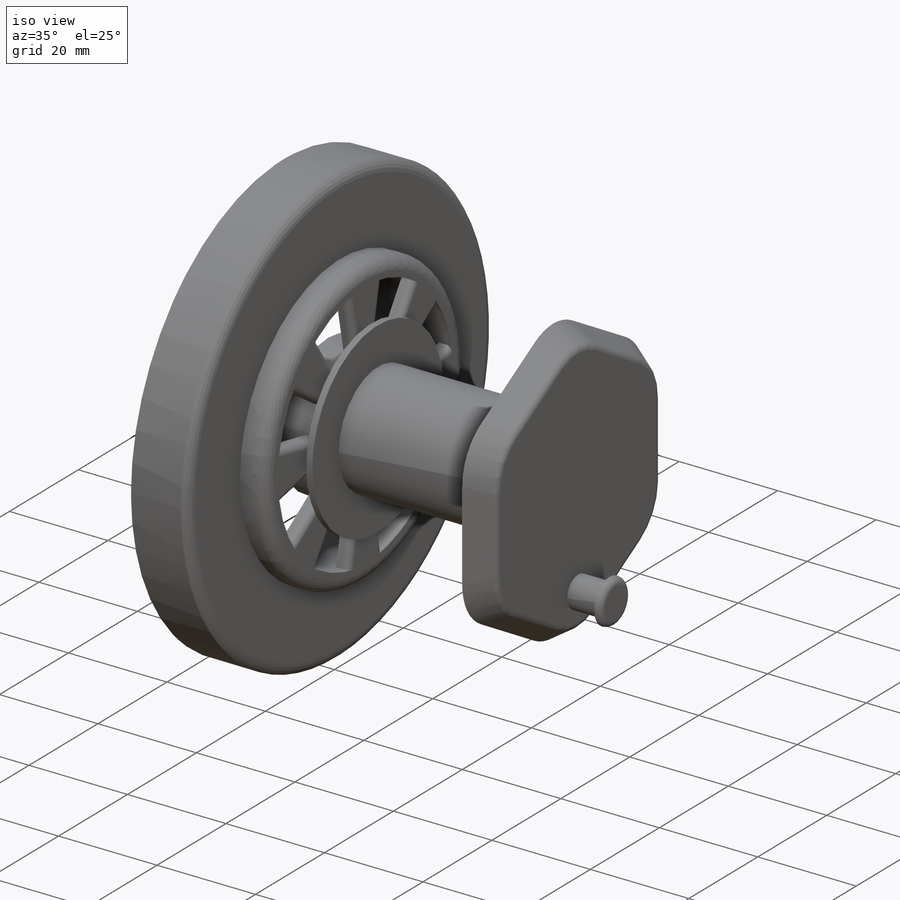
[diagram: iso view]
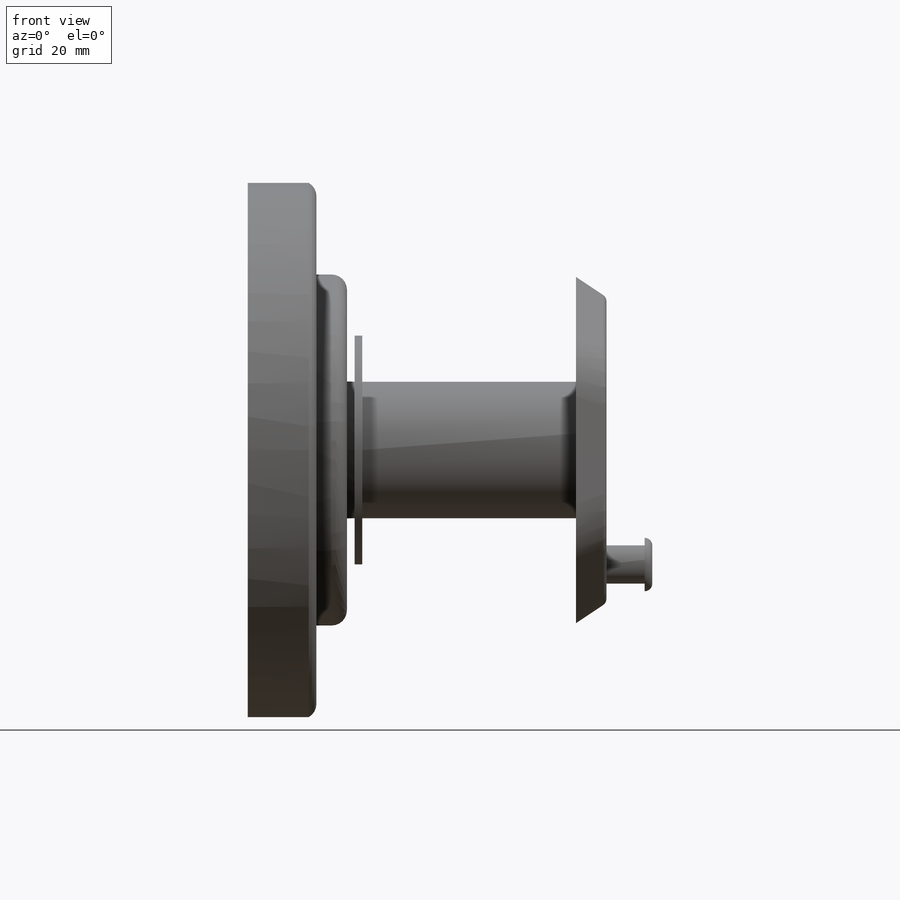
[diagram: front view]
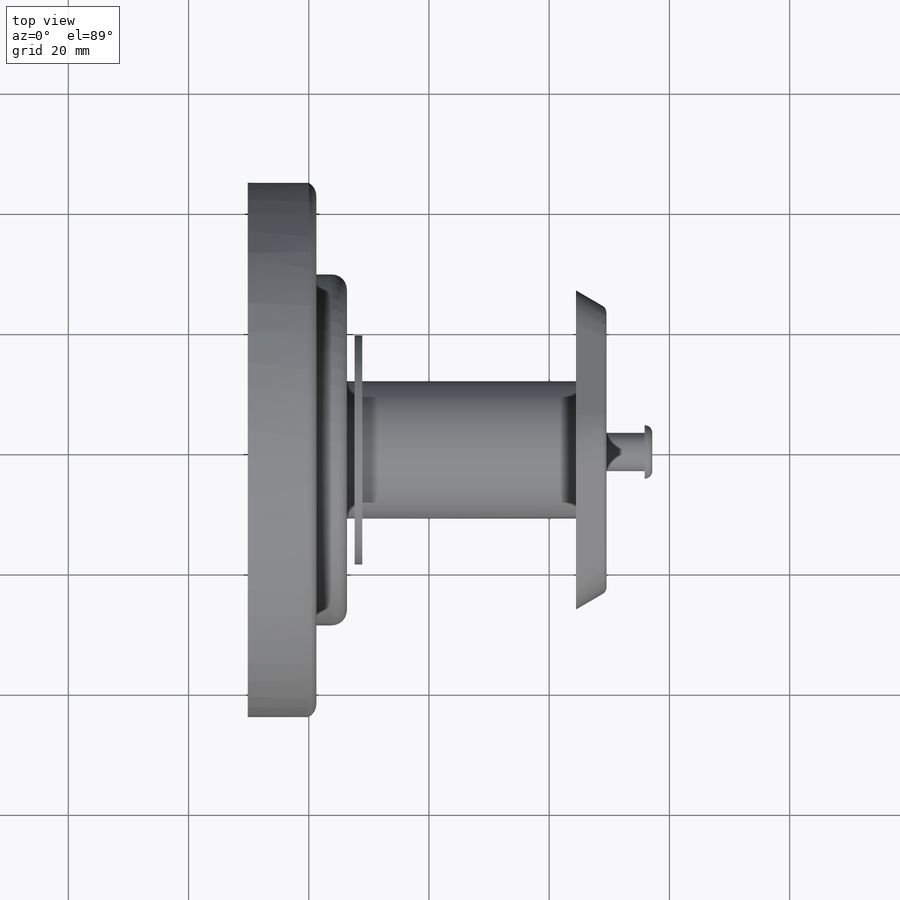
[diagram: top view]
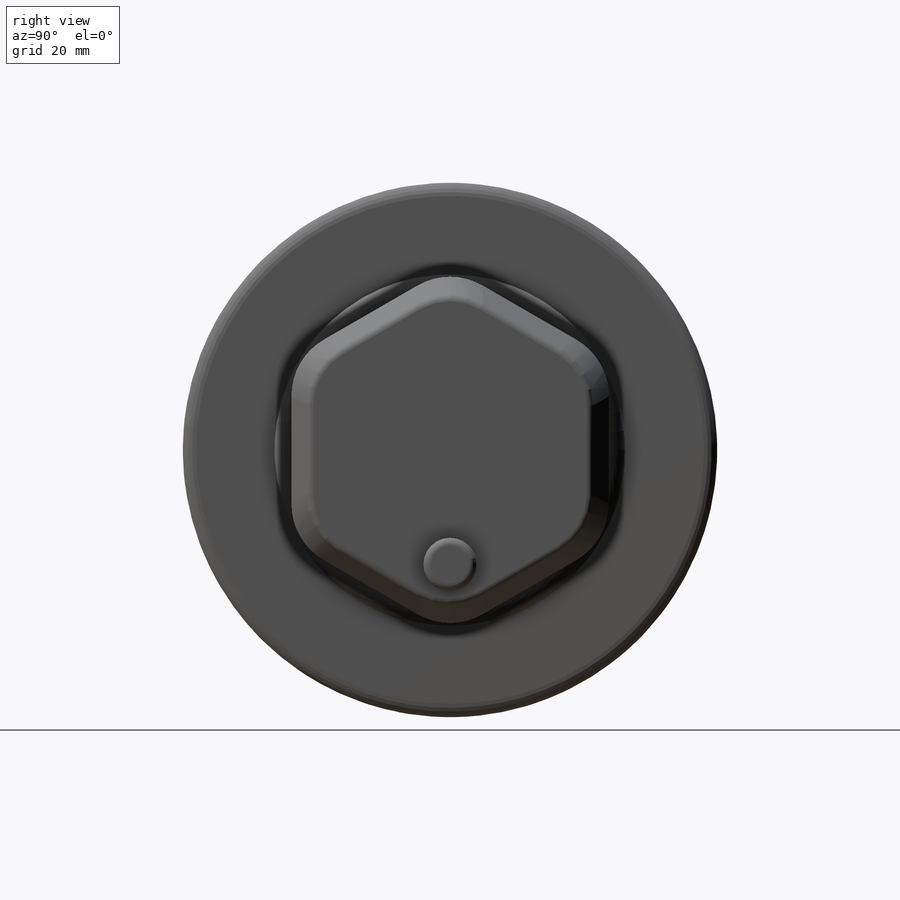
[diagram: right view]
SOLIDWORKS PART (.sldprt)
format: sldprt  version: not decoded by parser v0  size: 796,160 bytes
history: native  units: mm
features: sketch x15, extrude x12, fillet x7, material x1, plane x1, cut_revolve x1, cut_extrude x1 (+13 scaffold rows collapsed)
feature tree (51):
  scaffold x13  (default folders/planes/origin — collapsed)
  material  "Material <not specified>"
  sketch  "Sketch1"  dims[D1=50.8mm D2=88.9mm]
  extrude  "Boss-Extrude1"  Depth=1.27mm
  sketch  "Sketch2"  dims[D1=3.81mm]
  extrude  "Boss-Extrude2"  Depth=5.08mm
  sketch  "Sketch3"  dims[D1=27.94mm D2=11.43mm D3=8.0]
  extrude  "Boss-Extrude3"  Depth=2.54mm
  sketch  "Sketch4"  dims[D1=2.54mm]
  extrude  "Boss-Extrude4"  Depth=5.08mm
  fillet  "Fillet1"  Radius=2.54mm
  fillet  "Fillet2"  Radius=2.54mm
  fillet  "Fillet3"  Radius=2.54mm
  fillet  "Fillet4"  Radius=1.27mm
  sketch  "Sketch7"
  extrude  "Boss-Extrude7"  Depth=38.1mm
  sketch  "Sketch8"  dims[D1=30.48mm]
  extrude  "Boss-Extrude8"  Depth=5.08mm
  fillet  "Fillet6"  Radius=12.7mm
  fillet  "Fillet7"  Radius=1.27mm
  plane  "Plane1"  Offset=1.27mm
  sketch  "Sketch9"  dims[D1=38.1mm]
  extrude  "Boss-Extrude9"  Depth=1.27mm
  sketch  "Sketch10"  dims[D1=6.35mm D2=19.05mm]
  extrude  "Boss-Extrude10"  Depth=6.35mm
  sketch  "Sketch11"  dims[D1=8.89mm]
  extrude  "Boss-Extrude11"  Depth=1.27mm
  fillet  "Fillet9"  Radius=1.27mm
  sketch  "Sketch12"  dims[c1.D1=~86.119947mm c1.D2=50.8mm c2.D1=1.27mm c2.D2=1.27mm]
  extrude  "Boss-Extrude12"  Depth=10.16mm
  sketch  "Sketch13"  dims[D1=1.27mm D2=8.0]
  extrude  "Boss-Extrude13"  Depth=10.16mm
  sketch  "Sketch14"  dims[D3=3.81mm D1=2.286mm D2=2.286mm]
  sketch  "Sketch15"
  cut_revolve  "Cut-Revolve2"  Angle=360deg
  sketch  "Sketch16"  dims[D2=3.81mm D1=0.635mm]
  extrude  "Boss-Extrude14"  Depth=5.08mm
  sketch  "Sketch17"  dims[D1=2.54mm D2=55.88mm]
  cut_extrude  "Cut-Extrude2"  Depth=3.81mm
decode coverage: 34 of 36 modeling features carry decoded parameters
note: ~ marks probable driven/reference dimensions
note: suppression state not decoded; provenance and decode notes live in map.json
